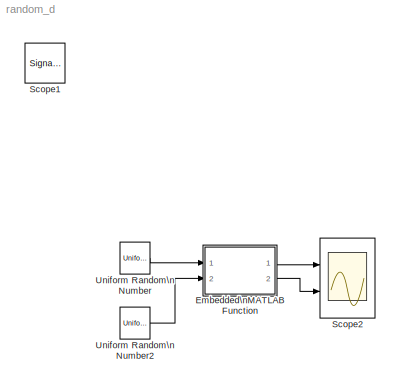
MODEL random_d
KIND model
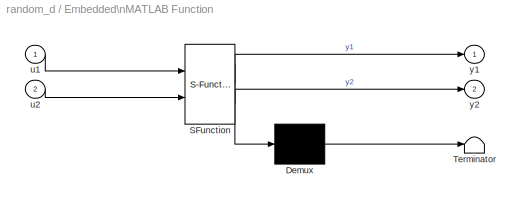
BLOCK [SubSystem] Embedded\nMATLAB Function
  FunctionWithSeparateData = off
  MaskDescription = Embedded MATLAB block
  MaskDisplay = disp('sumaresta');
  MaskHideContents = off
  MaskIconFrame = on
  MaskIconOpaque = off
  MaskIconRotate = none
  MaskIconUnits = autoscale
  MaskSelfModifiable = on
  MaskType = Stateflow
  MinAlgLoopOccurrences = off
  Opaque = off
  PermitHierarchicalResolution = ExplicitOnly
  Ports = [2, 2]
  PropExecContextOutsideSubsystem = off
  RTWSystemCode = Auto
  RequestExecContextInheritance = off
BLOCK [Demux] Embedded\nMATLAB Function/ Demux 
  Outputs = 1
  Ports = [1, 1]
BLOCK [S-Function] Embedded\nMATLAB Function/ SFunction 
  EnableBusSupport = on
  FunctionName = sf_sfun
  PortCounts = [2 3]
  Ports = [2, 3]
  Tag = Stateflow S-Function random_d 2
BLOCK [Terminator] Embedded\nMATLAB Function/ Terminator 
BLOCK [Inport] Embedded\nMATLAB Function/u1
  IconDisplay = Port number
  OutDataType = sfix(16)
  OutScaling = 2^0
BLOCK [Inport] Embedded\nMATLAB Function/u2
  IconDisplay = Port number
  Port = 2
BLOCK [Outport] Embedded\nMATLAB Function/y1
  IconDisplay = Port number
  OutDataType = sfix(16)
  OutScaling = 2^0
BLOCK [Outport] Embedded\nMATLAB Function/y2
  IconDisplay = Port number
  Port = 2
BLOCK [SignalViewerScope] Scope1
  DataFormat = Array
  IOType = viewer
  MaxDataPoints = 7500
  NumInputPorts = 1
  Ports = []
  RefreshTime = 0.035000
  ShowDataMarkers = off
  ShowLegends = off
BLOCK [Scope] Scope2
  DataFormat = StructureWithTime
  Floating = off
  NumInputPorts = 2
  Ports = [2]
  SampleTime = 0
  SaveName = ScopeData2
  YMax = 5~5
  YMin = -5~-5
  ZoomMode = xonly
BLOCK [UniformRandomNumber] Uniform Random\nNumber
  Minimum = 0
  SampleTime = 0
BLOCK [UniformRandomNumber] Uniform Random\nNumber2
  Minimum = 0
  SampleTime = 0
  Seed = 1
LINE Embedded\nMATLAB Function/ Demux :1 -> Embedded\nMATLAB Function/ Terminator :1
LINE Embedded\nMATLAB Function/ SFunction :1 -> Embedded\nMATLAB Function/ Demux :1
LINE Embedded\nMATLAB Function/ SFunction :2 -> Embedded\nMATLAB Function/y1:1
LINE Embedded\nMATLAB Function/ SFunction :3 -> Embedded\nMATLAB Function/y2:1
LINE Embedded\nMATLAB Function/u1:1 -> Embedded\nMATLAB Function/ SFunction :1
LINE Embedded\nMATLAB Function/u2:1 -> Embedded\nMATLAB Function/ SFunction :2
LINE Embedded\nMATLAB Function:1 -> Scope2:1
LINE Embedded\nMATLAB Function:2 -> Scope2:2
LINE Uniform Random\nNumber2:1 -> Embedded\nMATLAB Function:2
LINE Uniform Random\nNumber:1 -> Embedded\nMATLAB Function:1
CHART Embedded\nMATLAB Function states=1 transitions=1
  STATE_LABEL 'eML_blk_kernel()'
